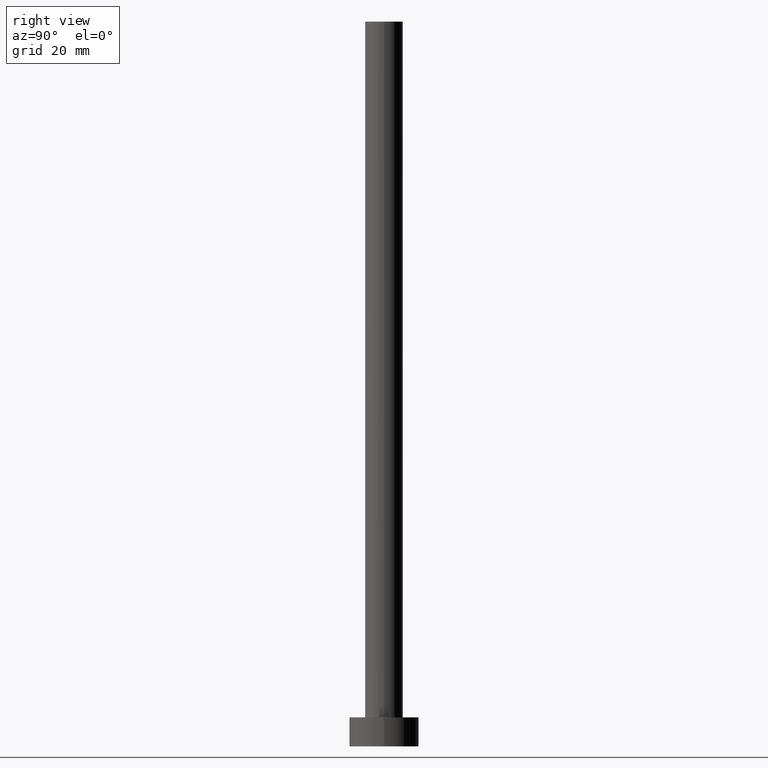
[diagram: clean part render]
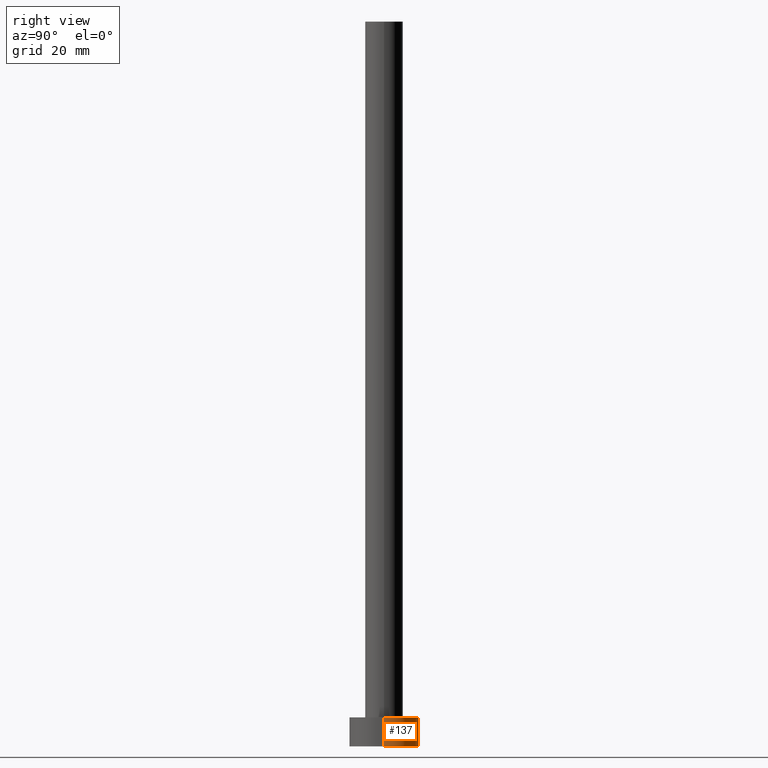
[diagram: same view with one face highlighted and labeled with its STEP entity id]
A machine part, right view. The second image highlights one B-rep face of the part: STEP entity #137.
In plain terms, the highlighted cylindrical surface (edge-blend (fillet) strip) has radius 6 mm, axis along (-0, -0, -1).
Its self-contained STEP definition (entity closure, byte-faithful):
#1 = VECTOR ( 'NONE', #198, 1000.000000000000000 ) ;
#4 = DIRECTION ( 'NONE',  ( -0.000000000000000000, -0.000000000000000000, -1.000000000000000000 ) ) ;
#5 = CARTESIAN_POINT ( 'NONE',  ( 0.000000000000000000, 0.000000000000000000, 5.000000000000000000 ) ) ;
#6 = EDGE_LOOP ( 'NONE', ( #8, #125, #149, #90 ) ) ;
#8 = ORIENTED_EDGE ( 'NONE', *, *, #59, .F. ) ;
#9 = CARTESIAN_POINT ( 'NONE',  ( 0.000000000000000000, 0.000000000000000000, 5.000000000000000000 ) ) ;
#23 = CYLINDRICAL_SURFACE ( 'NONE', #105, 6.000000000000000888 ) ;
#44 = FACE_OUTER_BOUND ( 'NONE', #6, .T. ) ;
#55 = VECTOR ( 'NONE', #113, 1000.000000000000000 ) ;
#59 = EDGE_CURVE ( 'NONE', #228, #241, #71, .T. ) ;
#67 = VERTEX_POINT ( 'NONE', #193 ) ;
#71 = CIRCLE ( 'NONE', #243, 6.000000000000000888 ) ;
#75 = LINE ( 'NONE', #231, #55 ) ;
#82 = DIRECTION ( 'NONE',  ( -1.000000000000000000, 0.000000000000000000, 0.000000000000000000 ) ) ;
#83 = EDGE_CURVE ( 'NONE', #228, #148, #75, .T. ) ;
#87 = DIRECTION ( 'NONE',  ( 0.000000000000000000, 0.000000000000000000, 1.000000000000000000 ) ) ;
#90 = ORIENTED_EDGE ( 'NONE', *, *, #207, .F. ) ;
#99 = DIRECTION ( 'NONE',  ( 0.000000000000000000, 0.000000000000000000, 1.000000000000000000 ) ) ;
#100 = AXIS2_PLACEMENT_3D ( 'NONE', #118, #99, #219 ) ;
#105 = AXIS2_PLACEMENT_3D ( 'NONE', #5, #4, #82 ) ;
#113 = DIRECTION ( 'NONE',  ( -0.000000000000000000, -0.000000000000000000, -1.000000000000000000 ) ) ;
#118 = CARTESIAN_POINT ( 'NONE',  ( 0.000000000000000000, 0.000000000000000000, 0.000000000000000000 ) ) ;
#125 = ORIENTED_EDGE ( 'NONE', *, *, #83, .T. ) ;
#137 = ADVANCED_FACE ( 'NONE', ( #44 ), #23, .T. ) ;
#143 = CARTESIAN_POINT ( 'NONE',  ( 6.000000000000000888, 7.347880794884120722E-16, 5.000000000000000000 ) ) ;
#148 = VERTEX_POINT ( 'NONE', #158 ) ;
#149 = ORIENTED_EDGE ( 'NONE', *, *, #239, .T. ) ;
#158 = CARTESIAN_POINT ( 'NONE',  ( 6.000000000000000888, 7.347880794884120722E-16, 0.000000000000000000 ) ) ;
#174 = CARTESIAN_POINT ( 'NONE',  ( -6.000000000000000888, 0.000000000000000000, 5.000000000000000000 ) ) ;
#193 = CARTESIAN_POINT ( 'NONE',  ( -6.000000000000000888, 0.000000000000000000, 0.000000000000000000 ) ) ;
#195 = CARTESIAN_POINT ( 'NONE',  ( -6.000000000000000888, 0.000000000000000000, 5.000000000000000000 ) ) ;
#198 = DIRECTION ( 'NONE',  ( -0.000000000000000000, -0.000000000000000000, -1.000000000000000000 ) ) ;
#207 = EDGE_CURVE ( 'NONE', #241, #67, #234, .T. ) ;
#211 = CIRCLE ( 'NONE', #100, 6.000000000000000888 ) ;
#219 = DIRECTION ( 'NONE',  ( 1.000000000000000000, 0.000000000000000000, 0.000000000000000000 ) ) ;
#228 = VERTEX_POINT ( 'NONE', #143 ) ;
#231 = CARTESIAN_POINT ( 'NONE',  ( 6.000000000000000888, 7.347880794884120722E-16, 5.000000000000000000 ) ) ;
#234 = LINE ( 'NONE', #195, #1 ) ;
#236 = DIRECTION ( 'NONE',  ( 1.000000000000000000, 0.000000000000000000, 0.000000000000000000 ) ) ;
#239 = EDGE_CURVE ( 'NONE', #148, #67, #211, .T. ) ;
#241 = VERTEX_POINT ( 'NONE', #174 ) ;
#243 = AXIS2_PLACEMENT_3D ( 'NONE', #9, #87, #236 ) ;